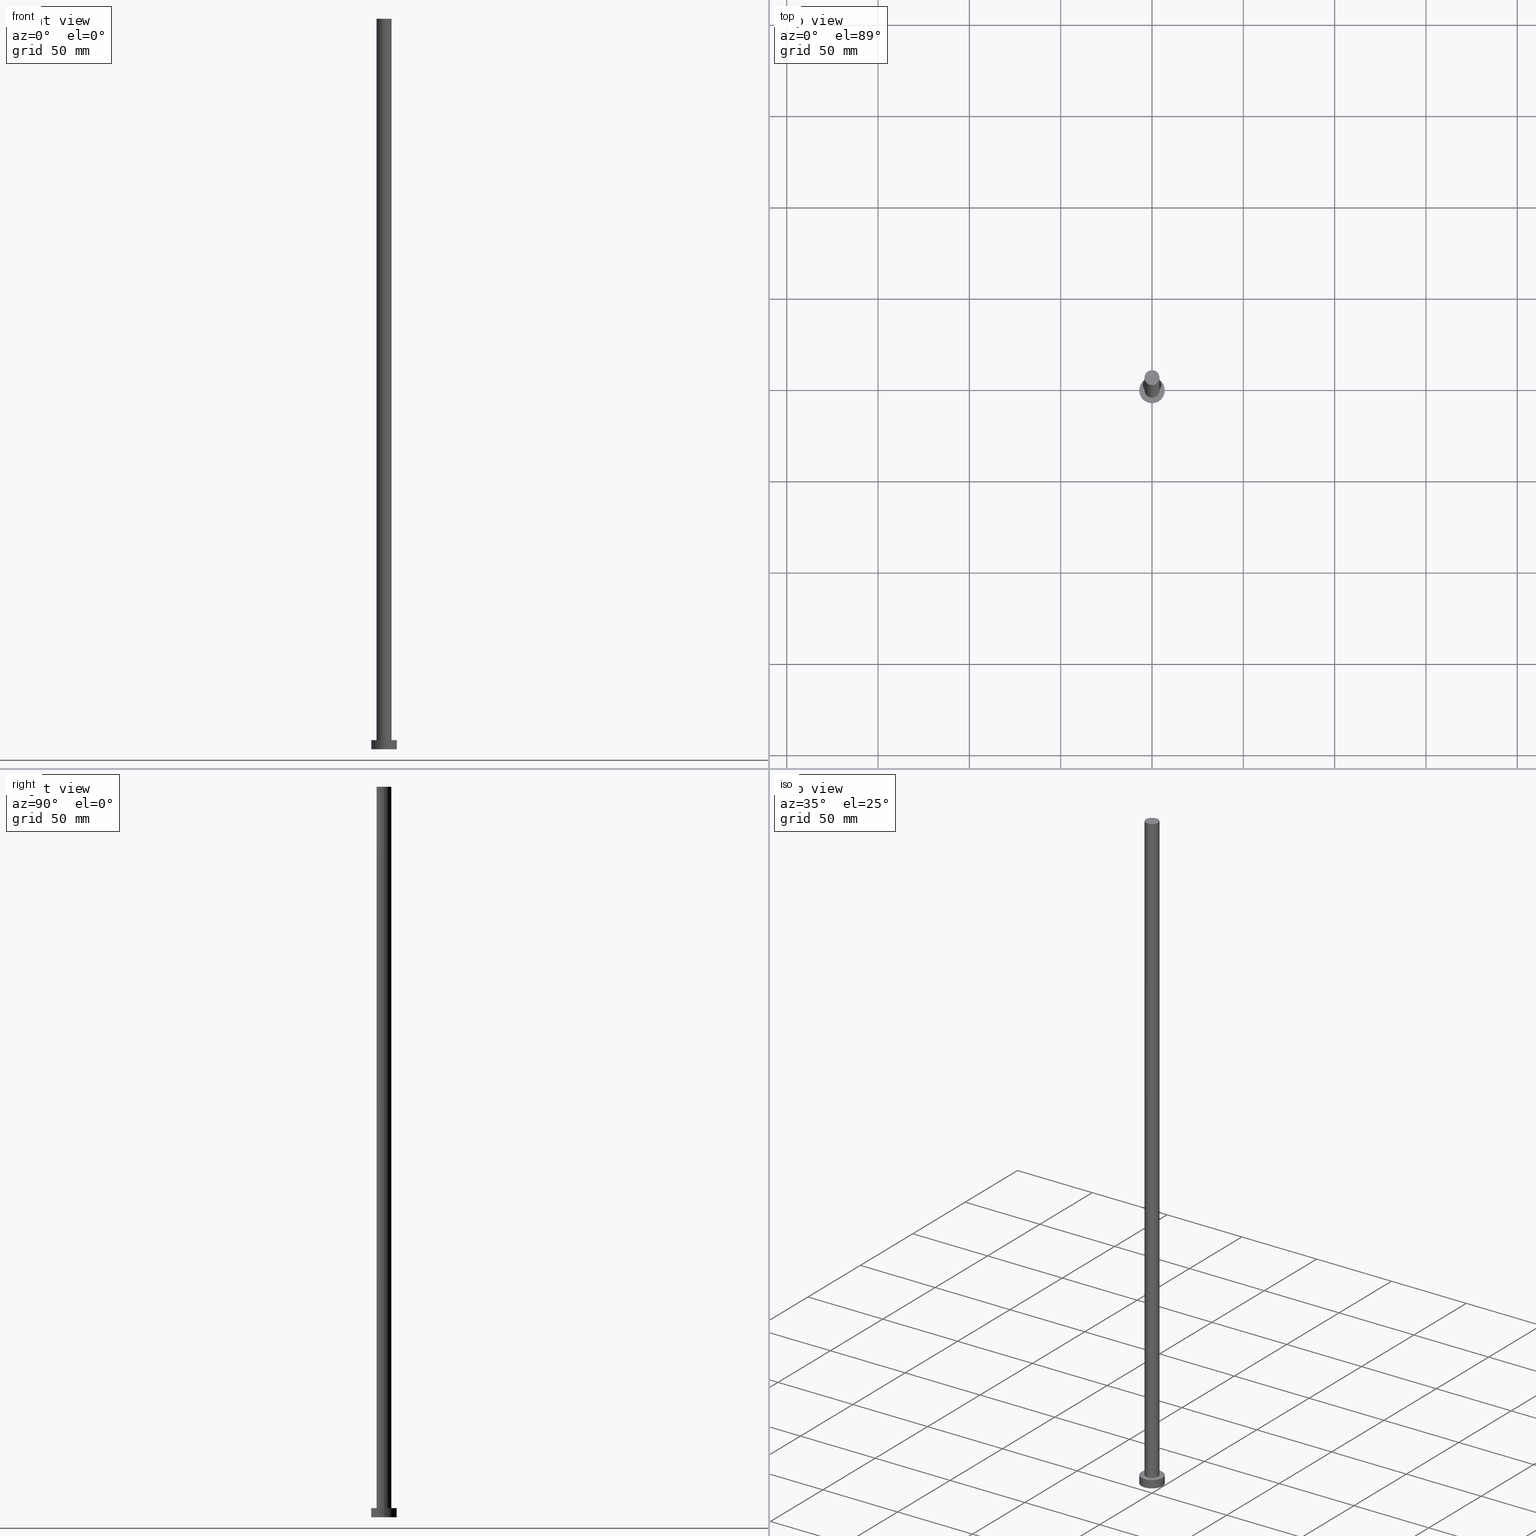
[diagram: canonical four-view strip — front | top / right | iso, engineering-drawing reading convention]
A machine part, canonical four-view strip (front | top / right | iso — engineering-drawing reading convention). The complete STEP part file that produces these views, byte-faithful:
ISO-10303-21;
HEADER;
FILE_DESCRIPTION (( 'STEP AP203' ),
    '1' );
FILE_NAME ('faa8.STEP',
    '2023-02-12T11:11:41',
    ( '' ),
    ( '' ),
    'SwSTEP 2.0',
    'SolidWorks 2019',
    '' );
FILE_SCHEMA (( 'CONFIG_CONTROL_DESIGN' ));
ENDSEC;

DATA;
#1 = PRODUCT_RELATED_PRODUCT_CATEGORY ( 'detail', '', ( #27 ) ) ;
#2 = CIRCLE ( 'NONE', #50, 4.099999999999999645 ) ;
#3 = DIRECTION ( 'NONE',  ( 1.000000000000000000, 0.000000000000000000, -0.000000000000000000 ) ) ;
#4 = VERTEX_POINT ( 'NONE', #26 ) ;
#5 = PLANE ( 'NONE',  #172 ) ;
#6 = ADVANCED_FACE ( 'NONE', ( #78 ), #5, .F. ) ;
#7 = DIRECTION ( 'NONE',  ( 0.000000000000000000, 0.000000000000000000, 1.000000000000000000 ) ) ;
#8 = AXIS2_PLACEMENT_3D ( 'NONE', #224, #7, #135 ) ;
#9 = ORIENTED_EDGE ( 'NONE', *, *, #25, .F. ) ;
#10 =( NAMED_UNIT ( * ) SI_UNIT ( $, .STERADIAN. ) SOLID_ANGLE_UNIT ( ) );
#11 = CARTESIAN_POINT ( 'NONE',  ( -7.000000000000000000, 0.000000000000000000, 5.000000000000000000 ) ) ;
#12 = EDGE_CURVE ( 'NONE', #4, #115, #206, .T. ) ;
#13 = CARTESIAN_POINT ( 'NONE',  ( 0.000000000000000000, 0.000000000000000000, 400.0000000000000000 ) ) ;
#14 = DIRECTION ( 'NONE',  ( 0.000000000000000000, 0.000000000000000000, 1.000000000000000000 ) ) ;
#15 = APPROVAL ( #164, 'NEUR�EN�' ) ;
#16 = SECURITY_CLASSIFICATION_LEVEL ( 'unclassified' ) ;
#17 = CALENDAR_DATE ( 2023, 12, 2 ) ;
#18 = DATE_AND_TIME ( #179, #127 ) ;
#19 = VERTEX_POINT ( 'NONE', #211 ) ;
#20 = DIRECTION ( 'NONE',  ( 0.000000000000000000, 0.000000000000000000, 1.000000000000000000 ) ) ;
#21 = ADVANCED_FACE ( 'NONE', ( #74, #77 ), #53, .T. ) ;
#22 = PERSON_AND_ORGANIZATION_ROLE ( 'design_supplier' ) ;
#23 = AXIS2_PLACEMENT_3D ( 'NONE', #35, #120, #82 ) ;
#24 = CC_DESIGN_SECURITY_CLASSIFICATION ( #185, ( #163 ) ) ;
#25 = EDGE_CURVE ( 'NONE', #151, #165, #99, .T. ) ;
#26 = CARTESIAN_POINT ( 'NONE',  ( 7.000000000000000000, 8.572527594031473190E-16, 0.000000000000000000 ) ) ;
#27 = PRODUCT ( 'faa8', 'faa8', '', ( #202 ) ) ;
#28 = ORIENTED_EDGE ( 'NONE', *, *, #12, .F. ) ;
#29 = CIRCLE ( 'NONE', #67, 4.099999999999999645 ) ;
#30 = ORIENTED_EDGE ( 'NONE', *, *, #154, .F. ) ;
#31 = ORIENTED_EDGE ( 'NONE', *, *, #25, .T. ) ;
#32 = EDGE_LOOP ( 'NONE', ( #207, #28 ) ) ;
#33 = AXIS2_PLACEMENT_3D ( 'NONE', #73, #192, #3 ) ;
#34 = PLANE ( 'NONE',  #180 ) ;
#35 = CARTESIAN_POINT ( 'NONE',  ( 0.000000000000000000, 0.000000000000000000, 400.0000000000000000 ) ) ;
#36 = DIRECTION ( 'NONE',  ( -0.000000000000000000, -0.000000000000000000, -1.000000000000000000 ) ) ;
#37 = ADVANCED_BREP_SHAPE_REPRESENTATION ( 'faa8', ( #166, #96 ), #59 ) ;
#38 = FACE_OUTER_BOUND ( 'NONE', #113, .T. ) ;
#39 = CC_DESIGN_APPROVAL ( #104, ( #163 ) ) ;
#40 = CARTESIAN_POINT ( 'NONE',  ( 0.000000000000000000, 0.000000000000000000, 5.000000000000000000 ) ) ;
#41 = COORDINATED_UNIVERSAL_TIME_OFFSET ( 1, 0, .AHEAD. ) ;
#42 = APPLICATION_PROTOCOL_DEFINITION ( 'international standard', 'config_control_design', 1994, #93 ) ;
#43 = CALENDAR_DATE ( 2023, 12, 2 ) ;
#44 = CIRCLE ( 'NONE', #75, 7.000000000000000000 ) ;
#45 = EDGE_CURVE ( 'NONE', #115, #4, #57, .T. ) ;
#46 = PERSON_AND_ORGANIZATION ( #187, #200 ) ;
#47 = APPROVAL_DATE_TIME ( #222, #104 ) ;
#48 = CC_DESIGN_DATE_AND_TIME_ASSIGNMENT ( #144, #184, ( #185 ) ) ;
#49 = ORIENTED_EDGE ( 'NONE', *, *, #154, .T. ) ;
#50 = AXIS2_PLACEMENT_3D ( 'NONE', #13, #156, #136 ) ;
#51 = DIRECTION ( 'NONE',  ( -0.000000000000000000, -0.000000000000000000, -1.000000000000000000 ) ) ;
#52 = ORIENTED_EDGE ( 'NONE', *, *, #114, .T. ) ;
#53 = PLANE ( 'NONE',  #33 ) ;
#54 = PRODUCT_DEFINITION ( 'NEZN�M�', '', #163, #69 ) ;
#55 = DIRECTION ( 'NONE',  ( 1.000000000000000000, 0.000000000000000000, 0.000000000000000000 ) ) ;
#56 = FACE_OUTER_BOUND ( 'NONE', #189, .T. ) ;
#57 = CIRCLE ( 'NONE', #8, 7.000000000000000000 ) ;
#58 = CC_DESIGN_PERSON_AND_ORGANIZATION_ASSIGNMENT ( #181, #129, ( #163 ) ) ;
#59 =( GEOMETRIC_REPRESENTATION_CONTEXT ( 3 ) GLOBAL_UNCERTAINTY_ASSIGNED_CONTEXT ( ( #227 ) ) GLOBAL_UNIT_ASSIGNED_CONTEXT ( ( #157, #155, #10 ) ) REPRESENTATION_CONTEXT ( 'NONE', 'WORKASPACE' ) );
#60 = FACE_OUTER_BOUND ( 'NONE', #204, .T. ) ;
#61 = EDGE_CURVE ( 'NONE', #165, #4, #212, .T. ) ;
#62 = AXIS2_PLACEMENT_3D ( 'NONE', #148, #188, #170 ) ;
#63 = CARTESIAN_POINT ( 'NONE',  ( 0.000000000000000000, 0.000000000000000000, 5.000000000000000000 ) ) ;
#64 = DIRECTION ( 'NONE',  ( 1.000000000000000000, 0.000000000000000000, 0.000000000000000000 ) ) ;
#65 = SHAPE_DEFINITION_REPRESENTATION ( #168, #37 ) ;
#66 = EDGE_CURVE ( 'NONE', #225, #19, #131, .T. ) ;
#67 = AXIS2_PLACEMENT_3D ( 'NONE', #215, #125, #213 ) ;
#68 = PERSON_AND_ORGANIZATION ( #187, #200 ) ;
#69 = DESIGN_CONTEXT ( 'detailed design', #122, 'design' ) ;
#70 = PERSON_AND_ORGANIZATION ( #187, #200 ) ;
#71 = CC_DESIGN_PERSON_AND_ORGANIZATION_ASSIGNMENT ( #106, #220, ( #185 ) ) ;
#72 = AXIS2_PLACEMENT_3D ( 'NONE', #40, #175, #216 ) ;
#73 = CARTESIAN_POINT ( 'NONE',  ( 0.000000000000000000, 0.000000000000000000, 5.000000000000000000 ) ) ;
#74 = FACE_BOUND ( 'NONE', #167, .T. ) ;
#75 = AXIS2_PLACEMENT_3D ( 'NONE', #140, #178, #139 ) ;
#76 = ORIENTED_EDGE ( 'NONE', *, *, #233, .T. ) ;
#77 = FACE_OUTER_BOUND ( 'NONE', #209, .T. ) ;
#78 = FACE_OUTER_BOUND ( 'NONE', #32, .T. ) ;
#79 = LOCAL_TIME ( 12, 11, 41.00000000000000000, #41 ) ;
#80 = CARTESIAN_POINT ( 'NONE',  ( 7.000000000000000000, 8.572527594031473190E-16, 5.000000000000000000 ) ) ;
#81 = CARTESIAN_POINT ( 'NONE',  ( -7.000000000000000000, 0.000000000000000000, 5.000000000000000000 ) ) ;
#82 = DIRECTION ( 'NONE',  ( 1.000000000000000000, 0.000000000000000000, 0.000000000000000000 ) ) ;
#83 = APPROVAL_PERSON_ORGANIZATION ( #107, #210, #239 ) ;
#84 = CARTESIAN_POINT ( 'NONE',  ( 4.099999999999999645, 5.021051876504146399E-16, 400.0000000000000000 ) ) ;
#85 = DIRECTION ( 'NONE',  ( -0.000000000000000000, -0.000000000000000000, -1.000000000000000000 ) ) ;
#86 = ADVANCED_FACE ( 'NONE', ( #38 ), #234, .T. ) ;
#87 = VECTOR ( 'NONE', #169, 1000.000000000000000 ) ;
#88 = DATE_AND_TIME ( #146, #221 ) ;
#89 = VERTEX_POINT ( 'NONE', #102 ) ;
#90 = COORDINATED_UNIVERSAL_TIME_OFFSET ( 1, 0, .AHEAD. ) ;
#91 = CARTESIAN_POINT ( 'NONE',  ( 0.000000000000000000, 0.000000000000000000, 0.000000000000000000 ) ) ;
#92 = ADVANCED_FACE ( 'NONE', ( #56 ), #34, .T. ) ;
#93 = APPLICATION_CONTEXT ( 'configuration controlled 3d designs of mechanical parts and assemblies' ) ;
#94 = CARTESIAN_POINT ( 'NONE',  ( 7.000000000000000000, 8.572527594031473190E-16, 5.000000000000000000 ) ) ;
#95 = DIRECTION ( 'NONE',  ( 0.000000000000000000, 0.000000000000000000, 1.000000000000000000 ) ) ;
#96 = AXIS2_PLACEMENT_3D ( 'NONE', #91, #20, #64 ) ;
#97 = ORIENTED_EDGE ( 'NONE', *, *, #195, .T. ) ;
#98 = CARTESIAN_POINT ( 'NONE',  ( 0.000000000000000000, 0.000000000000000000, 0.000000000000000000 ) ) ;
#99 = CIRCLE ( 'NONE', #112, 7.000000000000000000 ) ;
#100 = DIRECTION ( 'NONE',  ( -0.000000000000000000, -0.000000000000000000, -1.000000000000000000 ) ) ;
#101 = DIRECTION ( 'NONE',  ( -0.000000000000000000, -0.000000000000000000, -1.000000000000000000 ) ) ;
#102 = CARTESIAN_POINT ( 'NONE',  ( -4.099999999999999645, 0.000000000000000000, 5.000000000000000000 ) ) ;
#103 = CC_DESIGN_APPROVAL ( #210, ( #54 ) ) ;
#104 = APPROVAL ( #254, 'NEUR�EN�' ) ;
#105 = CARTESIAN_POINT ( 'NONE',  ( -7.000000000000000000, 0.000000000000000000, 0.000000000000000000 ) ) ;
#106 = PERSON_AND_ORGANIZATION ( #187, #200 ) ;
#107 = PERSON_AND_ORGANIZATION ( #187, #200 ) ;
#108 = AXIS2_PLACEMENT_3D ( 'NONE', #63, #36, #153 ) ;
#109 = PERSON_AND_ORGANIZATION ( #187, #200 ) ;
#110 = ORIENTED_EDGE ( 'NONE', *, *, #233, .F. ) ;
#111 = DIRECTION ( 'NONE',  ( 1.000000000000000000, 0.000000000000000000, -0.000000000000000000 ) ) ;
#112 = AXIS2_PLACEMENT_3D ( 'NONE', #152, #95, #55 ) ;
#113 = EDGE_LOOP ( 'NONE', ( #229, #9, #49, #247 ) ) ;
#114 = EDGE_CURVE ( 'NONE', #19, #89, #137, .T. ) ;
#115 = VERTEX_POINT ( 'NONE', #105 ) ;
#116 = ORIENTED_EDGE ( 'NONE', *, *, #244, .F. ) ;
#117 = CC_DESIGN_PERSON_AND_ORGANIZATION_ASSIGNMENT ( #109, #22, ( #163 ) ) ;
#118 = ORIENTED_EDGE ( 'NONE', *, *, #12, .T. ) ;
#119 = CYLINDRICAL_SURFACE ( 'NONE', #174, 4.099999999999999645 ) ;
#120 = DIRECTION ( 'NONE',  ( 0.000000000000000000, 0.000000000000000000, 1.000000000000000000 ) ) ;
#121 = LINE ( 'NONE', #217, #160 ) ;
#122 = APPLICATION_CONTEXT ( 'configuration controlled 3d designs of mechanical parts and assemblies' ) ;
#123 = DIRECTION ( 'NONE',  ( 0.000000000000000000, 0.000000000000000000, 1.000000000000000000 ) ) ;
#124 = LOCAL_TIME ( 12, 11, 41.00000000000000000, #205 ) ;
#125 = DIRECTION ( 'NONE',  ( 0.000000000000000000, 0.000000000000000000, 1.000000000000000000 ) ) ;
#126 = APPROVAL_ROLE ( '' ) ;
#127 = LOCAL_TIME ( 12, 11, 41.00000000000000000, #237 ) ;
#128 = APPROVAL_ROLE ( '' ) ;
#129 = PERSON_AND_ORGANIZATION_ROLE ( 'creator' ) ;
#130 = ORIENTED_EDGE ( 'NONE', *, *, #66, .F. ) ;
#131 = LINE ( 'NONE', #208, #87 ) ;
#132 = ORIENTED_EDGE ( 'NONE', *, *, #171, .T. ) ;
#133 = EDGE_LOOP ( 'NONE', ( #226, #147, #118, #30 ) ) ;
#134 = LOCAL_TIME ( 12, 11, 41.00000000000000000, #90 ) ;
#135 = DIRECTION ( 'NONE',  ( 1.000000000000000000, 0.000000000000000000, 0.000000000000000000 ) ) ;
#136 = DIRECTION ( 'NONE',  ( 1.000000000000000000, 0.000000000000000000, 0.000000000000000000 ) ) ;
#137 = CIRCLE ( 'NONE', #249, 4.099999999999999645 ) ;
#138 = CARTESIAN_POINT ( 'NONE',  ( 0.000000000000000000, 0.000000000000000000, 400.0000000000000000 ) ) ;
#139 = DIRECTION ( 'NONE',  ( 1.000000000000000000, 0.000000000000000000, 0.000000000000000000 ) ) ;
#140 = CARTESIAN_POINT ( 'NONE',  ( 0.000000000000000000, 0.000000000000000000, 5.000000000000000000 ) ) ;
#141 = PERSON_AND_ORGANIZATION_ROLE ( 'creator' ) ;
#142 = DATE_AND_TIME ( #238, #134 ) ;
#143 = VECTOR ( 'NONE', #253, 1000.000000000000000 ) ;
#144 = DATE_AND_TIME ( #17, #79 ) ;
#145 = PERSON_AND_ORGANIZATION_ROLE ( 'design_owner' ) ;
#146 = CALENDAR_DATE ( 2023, 12, 2 ) ;
#147 = ORIENTED_EDGE ( 'NONE', *, *, #61, .T. ) ;
#148 = CARTESIAN_POINT ( 'NONE',  ( 0.000000000000000000, 0.000000000000000000, 0.000000000000000000 ) ) ;
#149 = CC_DESIGN_APPROVAL ( #15, ( #185 ) ) ;
#150 = EDGE_LOOP ( 'NONE', ( #110, #242, #52, #223 ) ) ;
#151 = VERTEX_POINT ( 'NONE', #81 ) ;
#152 = CARTESIAN_POINT ( 'NONE',  ( 0.000000000000000000, 0.000000000000000000, 5.000000000000000000 ) ) ;
#153 = DIRECTION ( 'NONE',  ( -1.000000000000000000, 0.000000000000000000, 0.000000000000000000 ) ) ;
#154 = EDGE_CURVE ( 'NONE', #151, #115, #177, .T. ) ;
#155 =( NAMED_UNIT ( * ) PLANE_ANGLE_UNIT ( ) SI_UNIT ( $, .RADIAN. ) );
#156 = DIRECTION ( 'NONE',  ( 0.000000000000000000, 0.000000000000000000, 1.000000000000000000 ) ) ;
#157 =( LENGTH_UNIT ( ) NAMED_UNIT ( * ) SI_UNIT ( .MILLI., .METRE. ) );
#158 = VECTOR ( 'NONE', #51, 1000.000000000000000 ) ;
#159 = APPROVAL_DATE_TIME ( #88, #210 ) ;
#160 = VECTOR ( 'NONE', #85, 1000.000000000000000 ) ;
#161 = PERSON_AND_ORGANIZATION ( #187, #200 ) ;
#162 = CC_DESIGN_DATE_AND_TIME_ASSIGNMENT ( #142, #235, ( #54 ) ) ;
#163 = PRODUCT_DEFINITION_FORMATION_WITH_SPECIFIED_SOURCE ( 'LIBOVOLN�', '', #27, .NOT_KNOWN. ) ;
#164 = APPROVAL_STATUS ( 'not_yet_approved' ) ;
#165 = VERTEX_POINT ( 'NONE', #80 ) ;
#166 = MANIFOLD_SOLID_BREP ( 'P�idat vysunut�m3', #198 ) ;
#167 = EDGE_LOOP ( 'NONE', ( #245, #246 ) ) ;
#168 = PRODUCT_DEFINITION_SHAPE ( 'NONE', 'NONE',  #54 ) ;
#169 = DIRECTION ( 'NONE',  ( -0.000000000000000000, -0.000000000000000000, -1.000000000000000000 ) ) ;
#170 = DIRECTION ( 'NONE',  ( 1.000000000000000000, 0.000000000000000000, 0.000000000000000000 ) ) ;
#171 = EDGE_CURVE ( 'NONE', #89, #19, #29, .T. ) ;
#172 = AXIS2_PLACEMENT_3D ( 'NONE', #98, #190, #111 ) ;
#173 = ORIENTED_EDGE ( 'NONE', *, *, #218, .T. ) ;
#174 = AXIS2_PLACEMENT_3D ( 'NONE', #196, #100, #194 ) ;
#175 = DIRECTION ( 'NONE',  ( -0.000000000000000000, -0.000000000000000000, -1.000000000000000000 ) ) ;
#176 = DIRECTION ( 'NONE',  ( -1.000000000000000000, 0.000000000000000000, 0.000000000000000000 ) ) ;
#177 = LINE ( 'NONE', #11, #143 ) ;
#178 = DIRECTION ( 'NONE',  ( 0.000000000000000000, 0.000000000000000000, 1.000000000000000000 ) ) ;
#179 = CALENDAR_DATE ( 2023, 12, 2 ) ;
#180 = AXIS2_PLACEMENT_3D ( 'NONE', #248, #123, #199 ) ;
#181 = PERSON_AND_ORGANIZATION ( #187, #200 ) ;
#182 = APPROVAL_STATUS ( 'not_yet_approved' ) ;
#183 = APPROVAL_DATE_TIME ( #18, #15 ) ;
#184 = DATE_TIME_ROLE ( 'classification_date' ) ;
#185 = SECURITY_CLASSIFICATION ( '', '', #16 ) ;
#186 = CC_DESIGN_PERSON_AND_ORGANIZATION_ASSIGNMENT ( #68, #141, ( #54 ) ) ;
#187 = PERSON ( 'NEUR�EN�', 'NEUR�EN�', 'NEUR�EN�', ('NEUR�EN�'), ('NEUR�EN�'), ('NEUR�EN�') ) ;
#188 = DIRECTION ( 'NONE',  ( 0.000000000000000000, 0.000000000000000000, 1.000000000000000000 ) ) ;
#189 = EDGE_LOOP ( 'NONE', ( #241, #76 ) ) ;
#190 = DIRECTION ( 'NONE',  ( 0.000000000000000000, 0.000000000000000000, 1.000000000000000000 ) ) ;
#191 = ADVANCED_FACE ( 'NONE', ( #201 ), #252, .T. ) ;
#192 = DIRECTION ( 'NONE',  ( 0.000000000000000000, 0.000000000000000000, 1.000000000000000000 ) ) ;
#193 = VERTEX_POINT ( 'NONE', #230 ) ;
#194 = DIRECTION ( 'NONE',  ( -1.000000000000000000, 0.000000000000000000, 0.000000000000000000 ) ) ;
#195 = EDGE_CURVE ( 'NONE', #165, #151, #44, .T. ) ;
#196 = CARTESIAN_POINT ( 'NONE',  ( 0.000000000000000000, 0.000000000000000000, 400.0000000000000000 ) ) ;
#197 = CARTESIAN_POINT ( 'NONE',  ( 0.000000000000000000, 0.000000000000000000, 5.000000000000000000 ) ) ;
#198 = CLOSED_SHELL ( 'NONE', ( #240, #191, #86, #21, #6, #251, #92 ) ) ;
#199 = DIRECTION ( 'NONE',  ( 1.000000000000000000, 0.000000000000000000, -0.000000000000000000 ) ) ;
#200 = ORGANIZATION ( 'NEUR�EN�', 'NEUR�EN�', '' ) ;
#201 = FACE_OUTER_BOUND ( 'NONE', #133, .T. ) ;
#202 = MECHANICAL_CONTEXT ( 'NONE', #93, 'mechanical' ) ;
#203 = COORDINATED_UNIVERSAL_TIME_OFFSET ( 1, 0, .AHEAD. ) ;
#204 = EDGE_LOOP ( 'NONE', ( #130, #116, #173, #132 ) ) ;
#205 = COORDINATED_UNIVERSAL_TIME_OFFSET ( 1, 0, .AHEAD. ) ;
#206 = CIRCLE ( 'NONE', #62, 7.000000000000000000 ) ;
#207 = ORIENTED_EDGE ( 'NONE', *, *, #45, .F. ) ;
#208 = CARTESIAN_POINT ( 'NONE',  ( 4.099999999999999645, 5.021051876504146399E-16, 400.0000000000000000 ) ) ;
#209 = EDGE_LOOP ( 'NONE', ( #31, #97 ) ) ;
#210 = APPROVAL ( #182, 'NEUR�EN�' ) ;
#211 = CARTESIAN_POINT ( 'NONE',  ( 4.099999999999999645, 5.021051876504146399E-16, 5.000000000000000000 ) ) ;
#212 = LINE ( 'NONE', #94, #158 ) ;
#213 = DIRECTION ( 'NONE',  ( 1.000000000000000000, 0.000000000000000000, 0.000000000000000000 ) ) ;
#214 = CIRCLE ( 'NONE', #23, 4.099999999999999645 ) ;
#215 = CARTESIAN_POINT ( 'NONE',  ( 0.000000000000000000, 0.000000000000000000, 5.000000000000000000 ) ) ;
#216 = DIRECTION ( 'NONE',  ( -1.000000000000000000, 0.000000000000000000, 0.000000000000000000 ) ) ;
#217 = CARTESIAN_POINT ( 'NONE',  ( -4.099999999999999645, 0.000000000000000000, 400.0000000000000000 ) ) ;
#218 = EDGE_CURVE ( 'NONE', #193, #89, #121, .T. ) ;
#219 = APPROVAL_PERSON_ORGANIZATION ( #161, #15, #126 ) ;
#220 = PERSON_AND_ORGANIZATION_ROLE ( 'classification_officer' ) ;
#221 = LOCAL_TIME ( 12, 11, 41.00000000000000000, #203 ) ;
#222 = DATE_AND_TIME ( #43, #124 ) ;
#223 = ORIENTED_EDGE ( 'NONE', *, *, #218, .F. ) ;
#224 = CARTESIAN_POINT ( 'NONE',  ( 0.000000000000000000, 0.000000000000000000, 0.000000000000000000 ) ) ;
#225 = VERTEX_POINT ( 'NONE', #84 ) ;
#226 = ORIENTED_EDGE ( 'NONE', *, *, #195, .F. ) ;
#227 = UNCERTAINTY_MEASURE_WITH_UNIT (LENGTH_MEASURE( 1.000000000000000082E-05 ), #157, 'distance_accuracy_value', 'NONE');
#228 = APPROVAL_PERSON_ORGANIZATION ( #46, #104, #128 ) ;
#229 = ORIENTED_EDGE ( 'NONE', *, *, #61, .F. ) ;
#230 = CARTESIAN_POINT ( 'NONE',  ( -4.099999999999999645, 0.000000000000000000, 400.0000000000000000 ) ) ;
#231 = CYLINDRICAL_SURFACE ( 'NONE', #243, 4.099999999999999645 ) ;
#232 = FACE_OUTER_BOUND ( 'NONE', #150, .T. ) ;
#233 = EDGE_CURVE ( 'NONE', #225, #193, #2, .T. ) ;
#234 = CYLINDRICAL_SURFACE ( 'NONE', #72, 7.000000000000000000 ) ;
#235 = DATE_TIME_ROLE ( 'creation_date' ) ;
#236 = CC_DESIGN_PERSON_AND_ORGANIZATION_ASSIGNMENT ( #70, #145, ( #27 ) ) ;
#237 = COORDINATED_UNIVERSAL_TIME_OFFSET ( 1, 0, .AHEAD. ) ;
#238 = CALENDAR_DATE ( 2023, 12, 2 ) ;
#239 = APPROVAL_ROLE ( '' ) ;
#240 = ADVANCED_FACE ( 'NONE', ( #232 ), #231, .T. ) ;
#241 = ORIENTED_EDGE ( 'NONE', *, *, #244, .T. ) ;
#242 = ORIENTED_EDGE ( 'NONE', *, *, #66, .T. ) ;
#243 = AXIS2_PLACEMENT_3D ( 'NONE', #138, #101, #176 ) ;
#244 = EDGE_CURVE ( 'NONE', #193, #225, #214, .T. ) ;
#245 = ORIENTED_EDGE ( 'NONE', *, *, #171, .F. ) ;
#246 = ORIENTED_EDGE ( 'NONE', *, *, #114, .F. ) ;
#247 = ORIENTED_EDGE ( 'NONE', *, *, #45, .T. ) ;
#248 = CARTESIAN_POINT ( 'NONE',  ( 0.000000000000000000, 0.000000000000000000, 400.0000000000000000 ) ) ;
#249 = AXIS2_PLACEMENT_3D ( 'NONE', #197, #14, #250 ) ;
#250 = DIRECTION ( 'NONE',  ( 1.000000000000000000, 0.000000000000000000, 0.000000000000000000 ) ) ;
#251 = ADVANCED_FACE ( 'NONE', ( #60 ), #119, .T. ) ;
#252 = CYLINDRICAL_SURFACE ( 'NONE', #108, 7.000000000000000000 ) ;
#253 = DIRECTION ( 'NONE',  ( -0.000000000000000000, -0.000000000000000000, -1.000000000000000000 ) ) ;
#254 = APPROVAL_STATUS ( 'not_yet_approved' ) ;
#255 = APPLICATION_PROTOCOL_DEFINITION ( 'international standard', 'config_control_design', 1994, #122 ) ;
ENDSEC;
END-ISO-10303-21;
